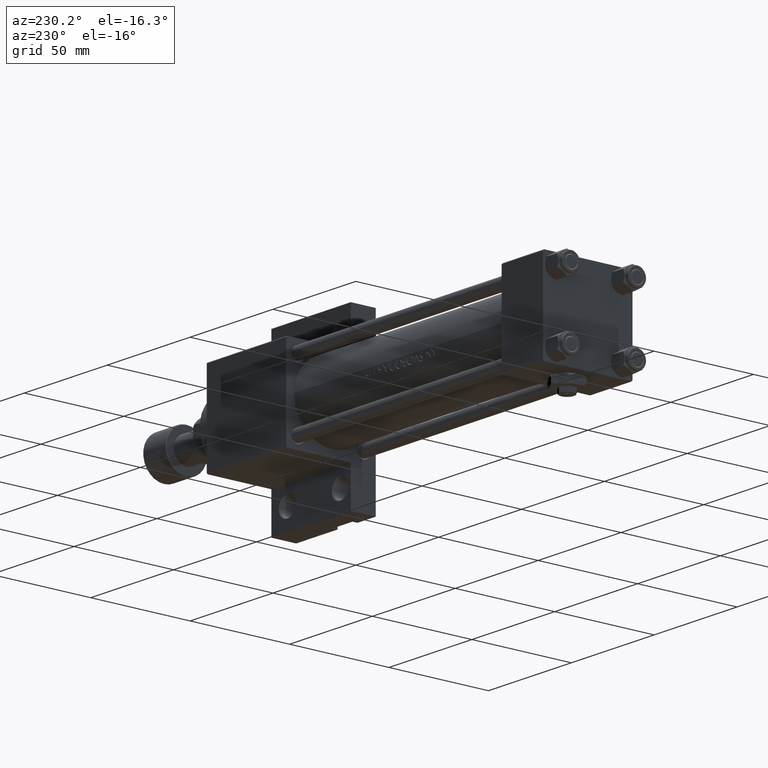
[diagram: clean part render]
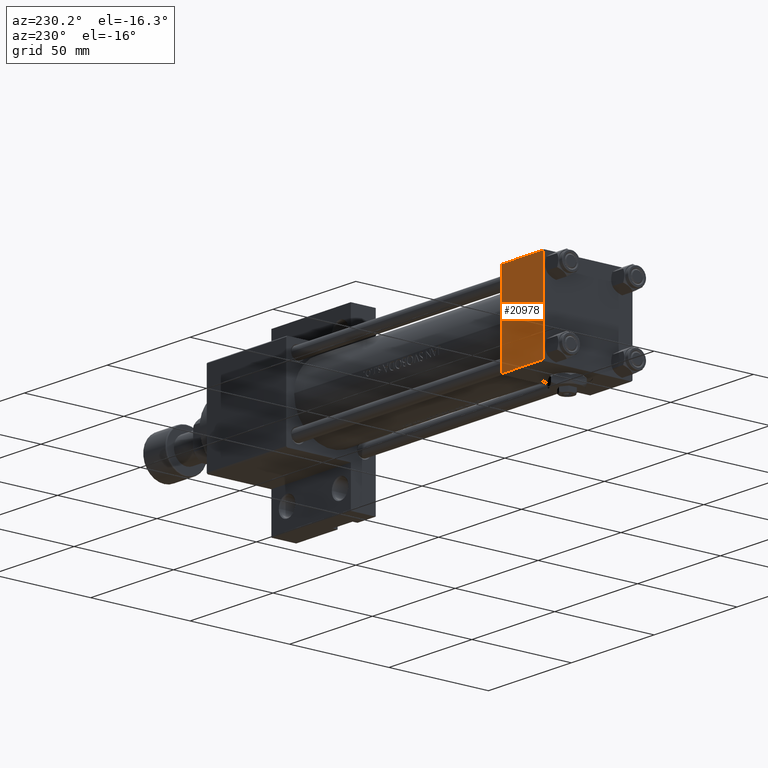
[diagram: same view with one face highlighted and labeled with its STEP entity id]
A machine part, auxiliary view. The second image highlights one B-rep face of the part: STEP entity #20978.
In plain terms, the highlighted planar face has unit normal (0, -1, -0).
Its self-contained STEP definition (entity closure, byte-faithful):
#16 = PLANE ( 'NONE',  #5145 ) ;
#3572 = FACE_OUTER_BOUND ( 'NONE', #21623, .T. ) ;
#4892 = CARTESIAN_POINT ( 'NONE',  ( 25.00000000000000000, -21.99999999999997868, 22.50000000000000000 ) ) ;
#4973 = EDGE_CURVE ( 'NONE', #12496, #49518, #44503, .T. ) ;
#5145 = AXIS2_PLACEMENT_3D ( 'NONE', #42561, #35005, #30996 ) ;
#7171 = DIRECTION ( 'NONE',  ( -1.000000000000000000, 0.000000000000000000, 0.000000000000000000 ) ) ;
#8222 = EDGE_CURVE ( 'NONE', #43765, #22752, #44907, .T. ) ;
#12496 = VERTEX_POINT ( 'NONE', #16344 ) ;
#16344 = CARTESIAN_POINT ( 'NONE',  ( 0.000000000000000000, -21.99999999999997868, 22.50000000000000000 ) ) ;
#16385 = VECTOR ( 'NONE', #25431, 1000.000000000000000 ) ;
#19284 = VECTOR ( 'NONE', #21618, 1000.000000000000000 ) ;
#20611 = CARTESIAN_POINT ( 'NONE',  ( 25.00000000000000000, -21.99999999999999289, 22.50000000000000000 ) ) ;
#20978 = ADVANCED_FACE ( 'NONE', ( #3572 ), #16, .F. ) ;
#21218 = EDGE_CURVE ( 'NONE', #43765, #49518, #21648, .T. ) ;
#21618 = DIRECTION ( 'NONE',  ( 1.000000000000000000, 0.000000000000000000, 0.000000000000000000 ) ) ;
#21623 = EDGE_LOOP ( 'NONE', ( #34710, #28849, #41384, #35767 ) ) ;
#21648 = LINE ( 'NONE', #44534, #16385 ) ;
#21765 = CARTESIAN_POINT ( 'NONE',  ( 25.00000000000000000, 21.99999999999999289, 22.50000000000000355 ) ) ;
#22752 = VERTEX_POINT ( 'NONE', #48197 ) ;
#25431 = DIRECTION ( 'NONE',  ( 0.000000000000000000, -1.000000000000000000, -7.709882115452476934E-17 ) ) ;
#26771 = VECTOR ( 'NONE', #29727, 1000.000000000000000 ) ;
#28849 = ORIENTED_EDGE ( 'NONE', *, *, #4973, .T. ) ;
#28978 = LINE ( 'NONE', #44056, #26771 ) ;
#29727 = DIRECTION ( 'NONE',  ( 0.000000000000000000, -1.000000000000000000, -7.709882115452476934E-17 ) ) ;
#30996 = DIRECTION ( 'NONE',  ( 0.000000000000000000, 1.000000000000000000, 7.709882115452476934E-17 ) ) ;
#34710 = ORIENTED_EDGE ( 'NONE', *, *, #48353, .T. ) ;
#35005 = DIRECTION ( 'NONE',  ( 0.000000000000000000, 7.709882115452476934E-17, -1.000000000000000000 ) ) ;
#35767 = ORIENTED_EDGE ( 'NONE', *, *, #8222, .T. ) ;
#41384 = ORIENTED_EDGE ( 'NONE', *, *, #21218, .F. ) ;
#41649 = CARTESIAN_POINT ( 'NONE',  ( 0.000000000000000000, 21.99999999999999289, 22.50000000000000355 ) ) ;
#42561 = CARTESIAN_POINT ( 'NONE',  ( 25.00000000000000000, 22.50000000000000000, 22.50000000000000355 ) ) ;
#43765 = VERTEX_POINT ( 'NONE', #21765 ) ;
#44056 = CARTESIAN_POINT ( 'NONE',  ( 0.000000000000000000, 22.50000000000000000, 22.50000000000000355 ) ) ;
#44503 = LINE ( 'NONE', #20611, #19284 ) ;
#44534 = CARTESIAN_POINT ( 'NONE',  ( 25.00000000000000000, 22.50000000000000000, 22.50000000000000355 ) ) ;
#44907 = LINE ( 'NONE', #41649, #46820 ) ;
#46820 = VECTOR ( 'NONE', #7171, 1000.000000000000000 ) ;
#48197 = CARTESIAN_POINT ( 'NONE',  ( 0.000000000000000000, 21.99999999999999289, 22.50000000000000355 ) ) ;
#48353 = EDGE_CURVE ( 'NONE', #22752, #12496, #28978, .T. ) ;
#49518 = VERTEX_POINT ( 'NONE', #4892 ) ;